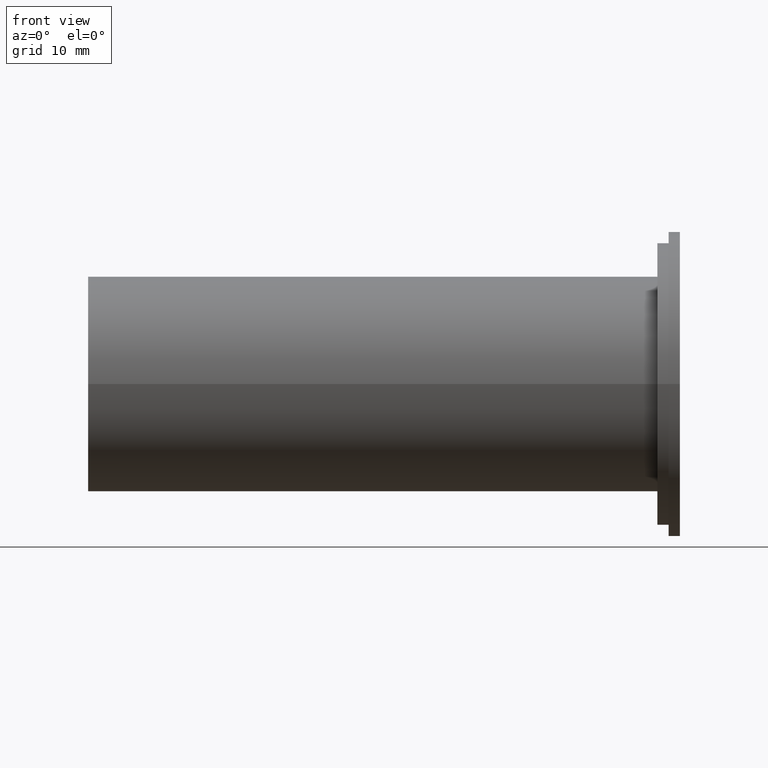
[diagram: clean part render]
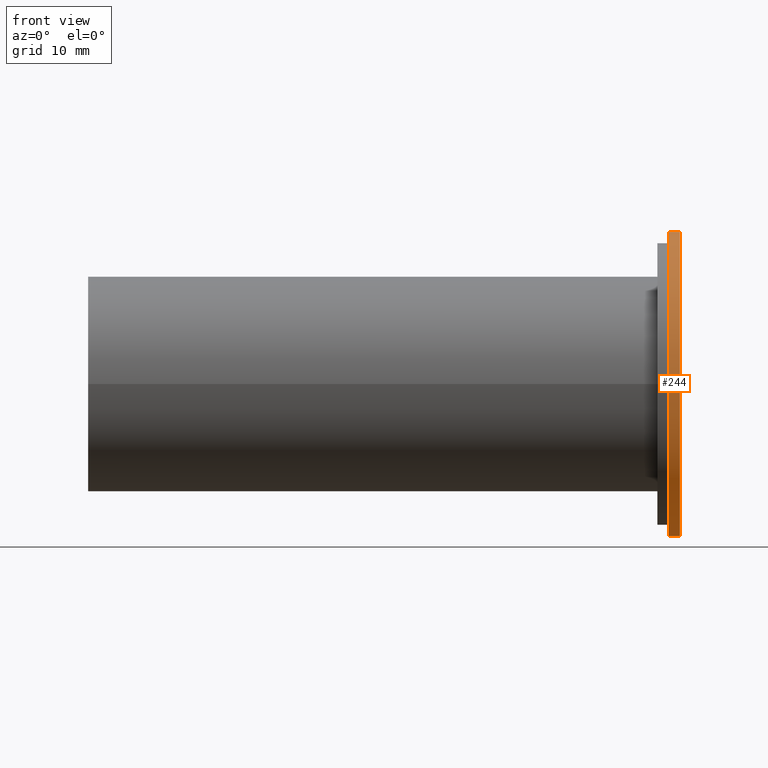
[diagram: same view with one face highlighted and labeled with its STEP entity id]
A machine part, front view. The second image highlights one B-rep face of the part: STEP entity #244.
In plain terms, the highlighted cylindrical surface (bore or boss wall) has radius 13.5 mm, axis along (1, 0, 0).
Its self-contained STEP definition (entity closure, byte-faithful):
#102=FACE_OUTER_BOUND('',#115,.T.);
#115=EDGE_LOOP('',(#214,#215,#216,#217));
#129=LINE('',#439,#137);
#137=VECTOR('',#355,13.5);
#147=CIRCLE('',#286,13.5);
#149=CIRCLE('',#289,13.5);
#163=VERTEX_POINT('',#432);
#165=VERTEX_POINT('',#437);
#181=EDGE_CURVE('',#163,#163,#147,.T.);
#183=EDGE_CURVE('',#165,#165,#149,.T.);
#184=EDGE_CURVE('',#165,#163,#129,.T.);
#214=ORIENTED_EDGE('',*,*,#183,.F.);
#215=ORIENTED_EDGE('',*,*,#184,.T.);
#216=ORIENTED_EDGE('',*,*,#181,.T.);
#217=ORIENTED_EDGE('',*,*,#184,.F.);
#235=CYLINDRICAL_SURFACE('',#288,13.5);
#244=ADVANCED_FACE('',(#102),#235,.T.);
#286=AXIS2_PLACEMENT_3D('',#433,#347,#348);
#288=AXIS2_PLACEMENT_3D('',#436,#351,#352);
#289=AXIS2_PLACEMENT_3D('',#438,#353,#354);
#347=DIRECTION('center_axis',(1.,0.,0.));
#348=DIRECTION('ref_axis',(0.,0.,-1.));
#351=DIRECTION('center_axis',(1.,0.,0.));
#352=DIRECTION('ref_axis',(0.,1.,0.));
#353=DIRECTION('center_axis',(1.,0.,0.));
#354=DIRECTION('ref_axis',(0.,0.,-1.));
#355=DIRECTION('',(-1.,0.,0.));
#432=CARTESIAN_POINT('',(-0.999999999999996,-13.5,-1.65327317884893E-15));
#433=CARTESIAN_POINT('Origin',(-0.999999999999996,0.,0.));
#436=CARTESIAN_POINT('Origin',(-0.499999999999995,0.,0.));
#437=CARTESIAN_POINT('',(4.9960036108132E-15,-13.5,-1.65327317884893E-15));
#438=CARTESIAN_POINT('Origin',(4.9960036108132E-15,0.,0.));
#439=CARTESIAN_POINT('',(-0.499999999999995,-13.5,-1.65327317884893E-15));